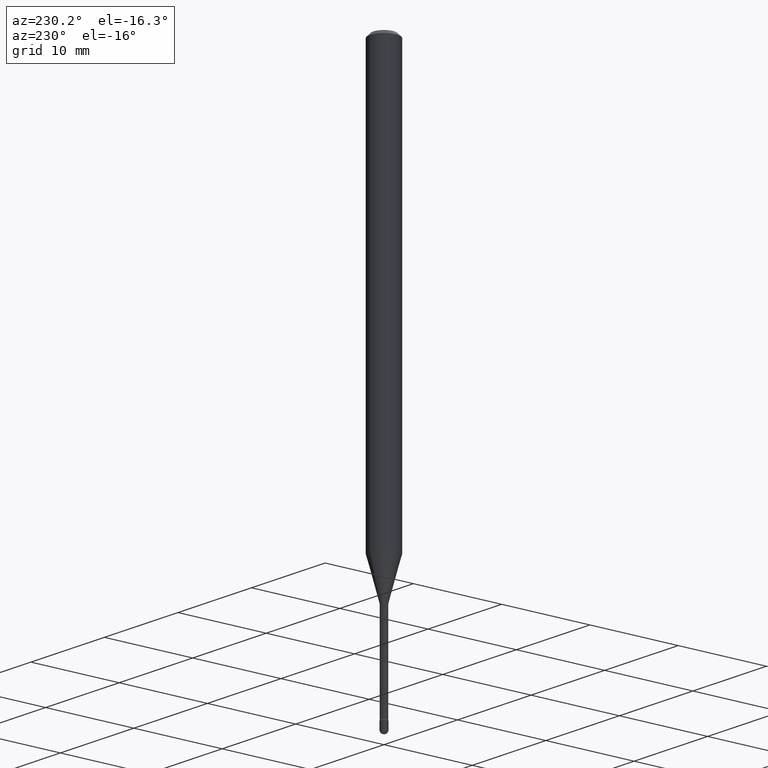
[diagram: clean part render]
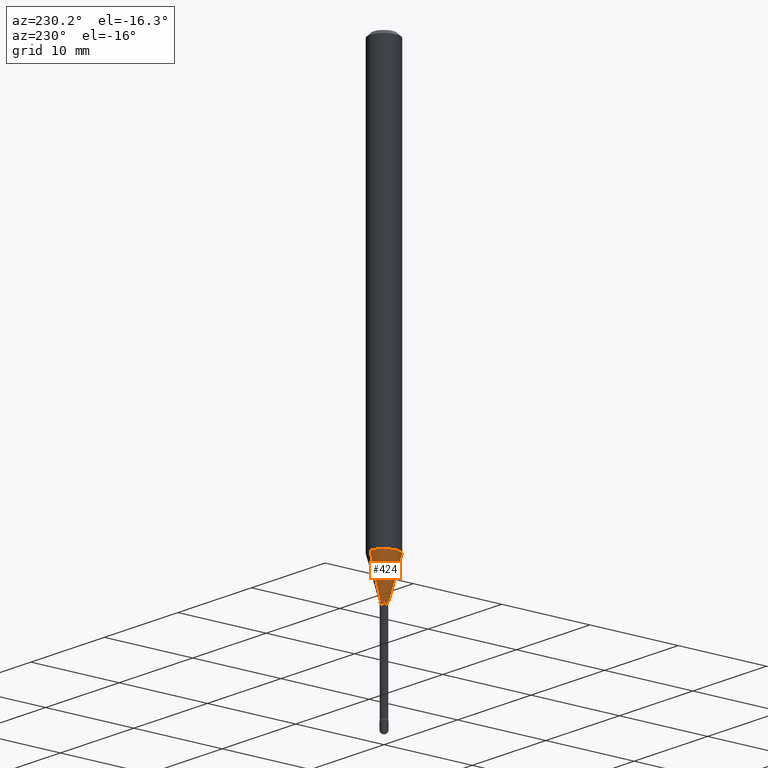
[diagram: same view with one face highlighted and labeled with its STEP entity id]
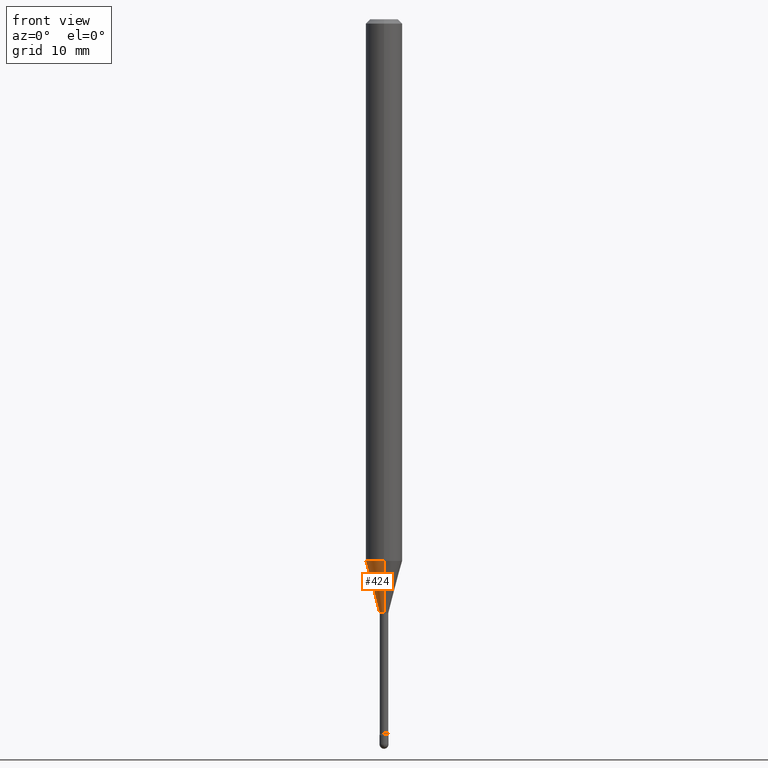
[diagram: same view with one face highlighted and labeled with its STEP entity id]
A machine part, auxiliary view. The second image highlights one B-rep face of the part: STEP entity #424.
A second angle (front view) of the same face is appended — the face is thin or edge-on in the first view.
In plain terms, the highlighted conical surface has half-angle 15 deg.
Its self-contained STEP definition (entity closure, byte-faithful):
#7 = CARTESIAN_POINT ( 'NONE',  ( -1.051711872097320102E-16, -0.01506111260567108076, -2.033092501787272965 ) ) ;
#20 = CARTESIAN_POINT ( 'NONE',  ( 4.538911420766442433E-29, -6.480352467688133493E-15, -1.856048163777072713 ) ) ;
#22 = VECTOR ( 'NONE', #345, 39.37007874015748143 ) ;
#49 = DIRECTION ( 'NONE',  ( -6.982962677686266711E-15, -1.000000000000000000, 0.000000000000000000 ) ) ;
#58 = CARTESIAN_POINT ( 'NONE',  ( 2.755524256971760080E-16, 0.01506111260565688378, -2.033092501787272965 ) ) ;
#75 = VECTOR ( 'NONE', #516, 39.37007874015748854 ) ;
#109 = FACE_OUTER_BOUND ( 'NONE', #522, .T. ) ;
#111 = DIRECTION ( 'NONE',  ( -2.445470709946298928E-29, 3.491478612548805977E-15, 1.000000000000000000 ) ) ;
#117 = DIRECTION ( 'NONE',  ( -6.982962677686266711E-15, -1.000000000000000000, 0.000000000000000000 ) ) ;
#137 = CARTESIAN_POINT ( 'NONE',  ( 4.971868163732220169E-29, -7.098498987323608591E-15, -2.033092501787272965 ) ) ;
#145 = VERTEX_POINT ( 'NONE', #257 ) ;
#149 = CARTESIAN_POINT ( 'NONE',  ( 4.440892098501077785E-16, 0.06249999999999351213, -1.856048163777072935 ) ) ;
#152 = EDGE_CURVE ( 'NONE', #331, #145, #535, .T. ) ;
#193 = DIRECTION ( 'NONE',  ( -6.982962677686265922E-15, -1.000000000000000000, 4.370956789862821150E-15 ) ) ;
#208 = CIRCLE ( 'NONE', #389, 0.01506111260566398227 ) ;
#223 = EDGE_CURVE ( 'NONE', #388, #331, #208, .T. ) ;
#257 = CARTESIAN_POINT ( 'NONE',  ( -4.364351673553463592E-16, -0.06250000000000649480, -1.856048163777072491 ) ) ;
#267 = DIRECTION ( 'NONE',  ( -2.445470709946298928E-29, 3.491478612548805977E-15, 1.000000000000000000 ) ) ;
#274 = DIRECTION ( 'NONE',  ( -2.445470709946298928E-29, 3.491478612548805977E-15, 1.000000000000000000 ) ) ;
#278 = ORIENTED_EDGE ( 'NONE', *, *, #324, .F. ) ;
#284 = CARTESIAN_POINT ( 'NONE',  ( 4.971868163732220169E-29, -7.098498987323608591E-15, -2.033092501787272965 ) ) ;
#319 = CARTESIAN_POINT ( 'NONE',  ( -1.051711872097320102E-16, -0.01506111260567108076, -2.033092501787272965 ) ) ;
#321 = ORIENTED_EDGE ( 'NONE', *, *, #466, .F. ) ;
#324 = EDGE_CURVE ( 'NONE', #403, #145, #335, .T. ) ;
#331 = VERTEX_POINT ( 'NONE', #319 ) ;
#334 = CARTESIAN_POINT ( 'NONE',  ( 1.070156415442438800E-16, 0.01506111260565688378, -2.033092501787272965 ) ) ;
#335 = CIRCLE ( 'NONE', #494, 0.06250000000000000000 ) ;
#345 = DIRECTION ( 'NONE',  ( -1.807323732225327773E-15, -0.2588190451025178529, 0.9659258262890690894 ) ) ;
#352 = CONICAL_SURFACE ( 'NONE', #554, 0.01506111260566398227, 0.2617993877991499074 ) ;
#388 = VERTEX_POINT ( 'NONE', #58 ) ;
#389 = AXIS2_PLACEMENT_3D ( 'NONE', #137, #267, #49 ) ;
#392 = ORIENTED_EDGE ( 'NONE', *, *, #152, .T. ) ;
#403 = VERTEX_POINT ( 'NONE', #149 ) ;
#424 = ADVANCED_FACE ( 'NONE', ( #109 ), #352, .T. ) ;
#430 = LINE ( 'NONE', #334, #75 ) ;
#466 = EDGE_CURVE ( 'NONE', #388, #403, #430, .T. ) ;
#473 = ORIENTED_EDGE ( 'NONE', *, *, #223, .T. ) ;
#494 = AXIS2_PLACEMENT_3D ( 'NONE', #20, #111, #193 ) ;
#516 = DIRECTION ( 'NONE',  ( 1.839019923739597554E-15, 0.2588190451025245697, 0.9659258262890670910 ) ) ;
#522 = EDGE_LOOP ( 'NONE', ( #321, #473, #392, #278 ) ) ;
#535 = LINE ( 'NONE', #7, #22 ) ;
#554 = AXIS2_PLACEMENT_3D ( 'NONE', #284, #274, #117 ) ;